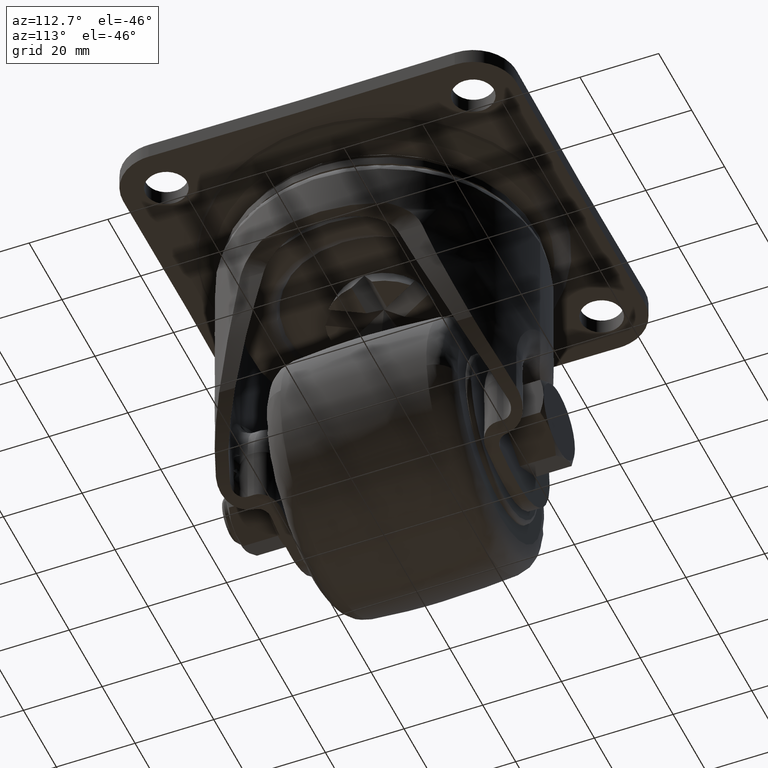
[diagram: clean part render]
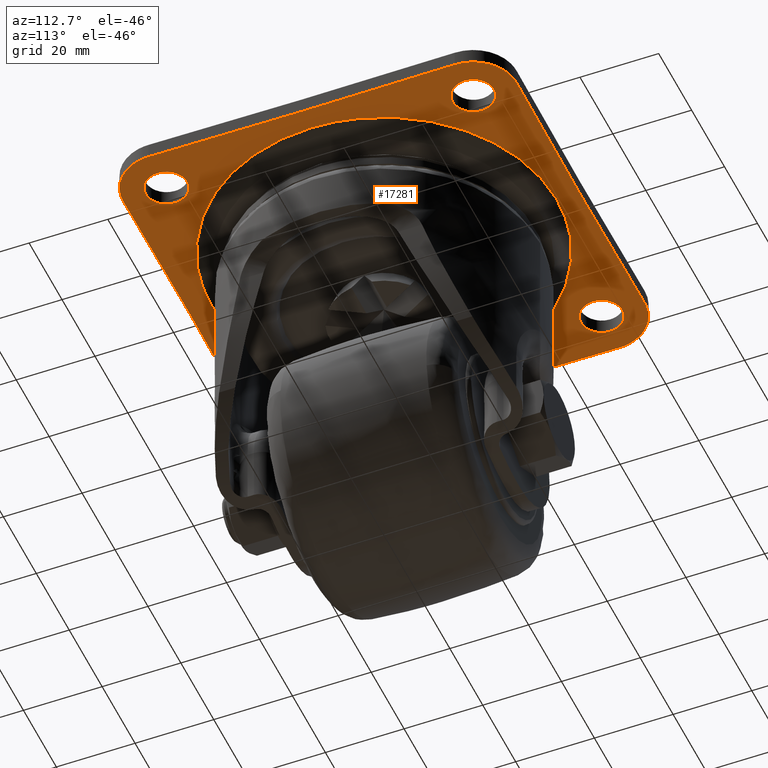
[diagram: same view with one face highlighted and labeled with its STEP entity id]
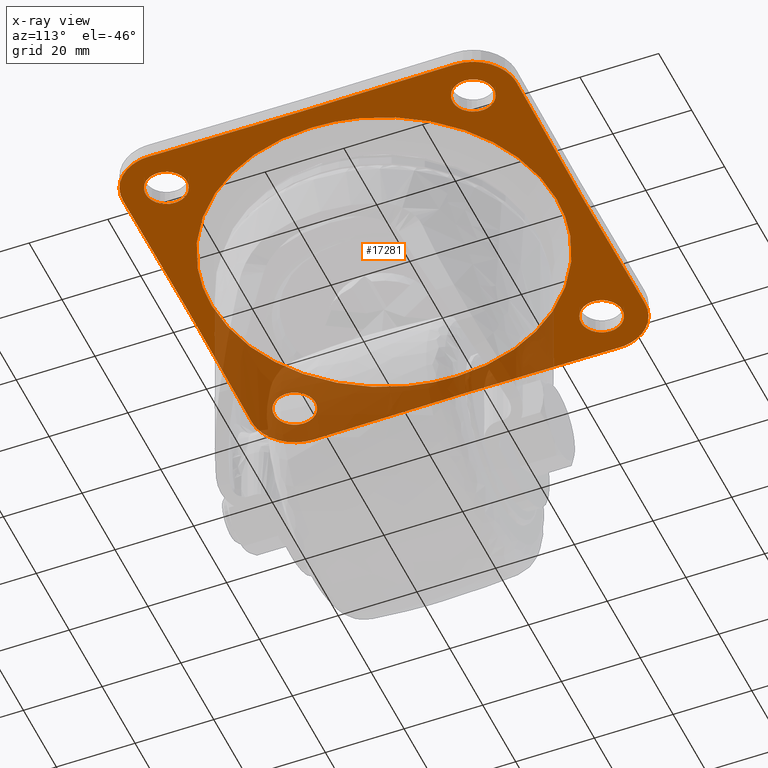
[diagram: x-ray of the same camera — body ghosted, the highlighted face saturated]
A machine part, auxiliary view. The second image highlights one B-rep face of the part: STEP entity #17281.
The next image is the same camera in x-ray: the body ghosted, the highlighted face saturated — about 30% of this face is hidden behind the body in this view.
In plain terms, the highlighted face is a freeform B-spline surface patch.
Its self-contained STEP definition (entity closure, byte-faithful):
#15421=CARTESIAN_POINT('',(-39.320512832876382,-44.240207691695332,-4.000005999999945));
#15422=VERTEX_POINT('',#15421);
#15423=CARTESIAN_POINT('',(-33.750008000000008,-39.0,-4.000005999999945));
#15424=VERTEX_POINT('',#15423);
#15425=CARTESIAN_POINT('',(-39.320512832876382,-44.240207691695332,-4.000005999999945));
#15426=CARTESIAN_POINT('',(-39.160410007477225,-44.250000000000000,-4.000005999999945));
#15427=CARTESIAN_POINT('',(-39.000008000000001,-44.250000000000000,-4.000005999999945));
#15428=CARTESIAN_POINT('',(-33.750008000000001,-44.250000000000007,-4.000005999999945));
#15429=CARTESIAN_POINT('',(-33.750008000000008,-39.0,-4.000005999999945));
#15437=(BOUNDED_CURVE()B_SPLINE_CURVE(2,(#15425,#15426,#15427,#15428,#15429),.UNSPECIFIED.,.F.,.U.)B_SPLINE_CURVE_WITH_KNOTS((3,2,3),(0.239332962231485,0.250000000000000,0.500000000000000),.UNSPECIFIED.)CURVE()GEOMETRIC_REPRESENTATION_ITEM()RATIONAL_B_SPLINE_CURVE((0.976072041650734,0.987502787891100,1.0,0.707106781186547,1.0))REPRESENTATION_ITEM(''));
#15438=EDGE_CURVE('',#15422,#15424,#15437,.T.);
#15479=CARTESIAN_POINT('',(-38.679503167123627,-33.759792308304668,-4.000005999999945));
#15480=VERTEX_POINT('',#15479);
#15486=CARTESIAN_POINT('',(-33.750008000000008,-39.0,-4.000005999999945));
#15487=CARTESIAN_POINT('',(-33.750008000000015,-34.061293149045717,-4.000005999999944));
#15488=CARTESIAN_POINT('',(-38.679503167123634,-33.759792308304675,-4.000005999999945));
#15496=(BOUNDED_CURVE()B_SPLINE_CURVE(2,(#15486,#15487,#15488),.UNSPECIFIED.,.F.,.U.)B_SPLINE_CURVE_WITH_KNOTS((3,3),(0.500000000000000,0.739332962231485),.UNSPECIFIED.)CURVE()GEOMETRIC_REPRESENTATION_ITEM()RATIONAL_B_SPLINE_CURVE((1.0,0.719603993295448,0.976072041650734))REPRESENTATION_ITEM(''));
#15497=EDGE_CURVE('',#15424,#15480,#15496,.T.);
#15520=CARTESIAN_POINT('',(-44.250008000000001,-39.0,-4.000005999999945));
#15521=VERTEX_POINT('',#15520);
#15522=CARTESIAN_POINT('',(-44.250008000000001,-39.0,-4.000005999999945));
#15523=CARTESIAN_POINT('',(-44.250008000000008,-43.938706850954283,-4.000005999999945));
#15524=CARTESIAN_POINT('',(-39.320512832876382,-44.240207691695332,-4.000005999999945));
#15532=(BOUNDED_CURVE()B_SPLINE_CURVE(2,(#15522,#15523,#15524),.UNSPECIFIED.,.F.,.U.)B_SPLINE_CURVE_WITH_KNOTS((3,3),(0.0,0.239332962231485),.UNSPECIFIED.)CURVE()GEOMETRIC_REPRESENTATION_ITEM()RATIONAL_B_SPLINE_CURVE((1.0,0.719603993295447,0.976072041650734))REPRESENTATION_ITEM(''));
#15533=EDGE_CURVE('',#15521,#15422,#15532,.T.);
#15535=CARTESIAN_POINT('',(-38.679503167123620,-33.759792308304682,-4.000005999999944));
#15536=CARTESIAN_POINT('',(-38.839605992522770,-33.750000000000000,-4.000005999999945));
#15537=CARTESIAN_POINT('',(-39.000008000000001,-33.750000000000000,-4.000005999999945));
#15538=CARTESIAN_POINT('',(-44.250007999999994,-33.750000000000007,-4.000005999999945));
#15539=CARTESIAN_POINT('',(-44.250008000000001,-39.0,-4.000005999999945));
#15547=(BOUNDED_CURVE()B_SPLINE_CURVE(2,(#15535,#15536,#15537,#15538,#15539),.UNSPECIFIED.,.F.,.U.)B_SPLINE_CURVE_WITH_KNOTS((3,2,3),(0.739332962231485,0.750000000000000,1.0),.UNSPECIFIED.)CURVE()GEOMETRIC_REPRESENTATION_ITEM()RATIONAL_B_SPLINE_CURVE((0.976072041650734,0.987502787891100,1.0,0.707106781186547,1.0))REPRESENTATION_ITEM(''));
#15548=EDGE_CURVE('',#15480,#15521,#15547,.T.);
#15603=CARTESIAN_POINT('',(-39.320512832876382,33.759792308304668,-4.000005999999945));
#15604=VERTEX_POINT('',#15603);
#15605=CARTESIAN_POINT('',(-33.750008000000008,39.0,-4.000005999999945));
#15606=VERTEX_POINT('',#15605);
#15607=CARTESIAN_POINT('',(-39.320512832876368,33.759792308304675,-4.000005999999944));
#15608=CARTESIAN_POINT('',(-39.160410007477225,33.750000000000000,-4.000005999999944));
#15609=CARTESIAN_POINT('',(-39.000008000000001,33.750000000000000,-4.000005999999945));
#15610=CARTESIAN_POINT('',(-33.750008000000001,33.750000000000007,-4.000005999999945));
#15611=CARTESIAN_POINT('',(-33.750008000000008,39.0,-4.000005999999945));
#15619=(BOUNDED_CURVE()B_SPLINE_CURVE(2,(#15607,#15608,#15609,#15610,#15611),.UNSPECIFIED.,.F.,.U.)B_SPLINE_CURVE_WITH_KNOTS((3,2,3),(0.239332962231485,0.250000000000000,0.500000000000000),.UNSPECIFIED.)CURVE()GEOMETRIC_REPRESENTATION_ITEM()RATIONAL_B_SPLINE_CURVE((0.976072041650734,0.987502787891100,1.0,0.707106781186547,1.0))REPRESENTATION_ITEM(''));
#15620=EDGE_CURVE('',#15604,#15606,#15619,.T.);
#15661=CARTESIAN_POINT('',(-38.679503167123627,44.240207691695332,-4.000005999999945));
#15662=VERTEX_POINT('',#15661);
#15668=CARTESIAN_POINT('',(-33.750008000000008,39.0,-4.000005999999945));
#15669=CARTESIAN_POINT('',(-33.750008000000015,43.938706850954276,-4.000005999999944));
#15670=CARTESIAN_POINT('',(-38.679503167123634,44.240207691695332,-4.000005999999945));
#15678=(BOUNDED_CURVE()B_SPLINE_CURVE(2,(#15668,#15669,#15670),.UNSPECIFIED.,.F.,.U.)B_SPLINE_CURVE_WITH_KNOTS((3,3),(0.500000000000000,0.739332962231485),.UNSPECIFIED.)CURVE()GEOMETRIC_REPRESENTATION_ITEM()RATIONAL_B_SPLINE_CURVE((1.0,0.719603993295448,0.976072041650734))REPRESENTATION_ITEM(''));
#15679=EDGE_CURVE('',#15606,#15662,#15678,.T.);
#15702=CARTESIAN_POINT('',(-44.250008000000001,39.0,-4.000005999999945));
#15703=VERTEX_POINT('',#15702);
#15704=CARTESIAN_POINT('',(-44.250008000000001,39.0,-4.000005999999945));
#15705=CARTESIAN_POINT('',(-44.250008000000008,34.061293149045710,-4.000005999999945));
#15706=CARTESIAN_POINT('',(-39.320512832876382,33.759792308304682,-4.000005999999945));
#15714=(BOUNDED_CURVE()B_SPLINE_CURVE(2,(#15704,#15705,#15706),.UNSPECIFIED.,.F.,.U.)B_SPLINE_CURVE_WITH_KNOTS((3,3),(0.0,0.239332962231485),.UNSPECIFIED.)CURVE()GEOMETRIC_REPRESENTATION_ITEM()RATIONAL_B_SPLINE_CURVE((1.0,0.719603993295447,0.976072041650734))REPRESENTATION_ITEM(''));
#15715=EDGE_CURVE('',#15703,#15604,#15714,.T.);
#15717=CARTESIAN_POINT('',(-38.679503167123620,44.240207691695332,-4.000005999999944));
#15718=CARTESIAN_POINT('',(-38.839605992522770,44.250000000000000,-4.000005999999945));
#15719=CARTESIAN_POINT('',(-39.000008000000001,44.250000000000000,-4.000005999999945));
#15720=CARTESIAN_POINT('',(-44.250007999999994,44.250000000000007,-4.000005999999945));
#15721=CARTESIAN_POINT('',(-44.250008000000001,39.0,-4.000005999999945));
#15729=(BOUNDED_CURVE()B_SPLINE_CURVE(2,(#15717,#15718,#15719,#15720,#15721),.UNSPECIFIED.,.F.,.U.)B_SPLINE_CURVE_WITH_KNOTS((3,2,3),(0.739332962231485,0.750000000000000,1.0),.UNSPECIFIED.)CURVE()GEOMETRIC_REPRESENTATION_ITEM()RATIONAL_B_SPLINE_CURVE((0.976072041650734,0.987502787891100,1.0,0.707106781186547,1.0))REPRESENTATION_ITEM(''));
#15730=EDGE_CURVE('',#15662,#15703,#15729,.T.);
#15785=CARTESIAN_POINT('',(38.679503167123627,33.759792308304668,-4.000005999999945));
#15786=VERTEX_POINT('',#15785);
#15787=CARTESIAN_POINT('',(44.250008000000001,39.0,-4.000005999999945));
#15788=VERTEX_POINT('',#15787);
#15789=CARTESIAN_POINT('',(38.679503167123627,33.759792308304682,-4.000005999999944));
#15790=CARTESIAN_POINT('',(38.839605992522770,33.750000000000000,-4.000005999999944));
#15791=CARTESIAN_POINT('',(39.000008000000001,33.750000000000000,-4.000005999999945));
#15792=CARTESIAN_POINT('',(44.250007999999994,33.750000000000007,-4.000005999999945));
#15793=CARTESIAN_POINT('',(44.250008000000001,39.0,-4.000005999999945));
#15801=(BOUNDED_CURVE()B_SPLINE_CURVE(2,(#15789,#15790,#15791,#15792,#15793),.UNSPECIFIED.,.F.,.U.)B_SPLINE_CURVE_WITH_KNOTS((3,2,3),(0.239332962231485,0.250000000000000,0.500000000000000),.UNSPECIFIED.)CURVE()GEOMETRIC_REPRESENTATION_ITEM()RATIONAL_B_SPLINE_CURVE((0.976072041650734,0.987502787891100,1.0,0.707106781186547,1.0))REPRESENTATION_ITEM(''));
#15802=EDGE_CURVE('',#15786,#15788,#15801,.T.);
#15843=CARTESIAN_POINT('',(39.320512832876382,44.240207691695332,-4.000005999999945));
#15844=VERTEX_POINT('',#15843);
#15850=CARTESIAN_POINT('',(44.250008000000001,39.0,-4.000005999999945));
#15851=CARTESIAN_POINT('',(44.250008000000001,43.938706850954269,-4.000005999999945));
#15852=CARTESIAN_POINT('',(39.320512832876375,44.240207691695332,-4.000005999999944));
#15860=(BOUNDED_CURVE()B_SPLINE_CURVE(2,(#15850,#15851,#15852),.UNSPECIFIED.,.F.,.U.)B_SPLINE_CURVE_WITH_KNOTS((3,3),(0.500000000000000,0.739332962231485),.UNSPECIFIED.)CURVE()GEOMETRIC_REPRESENTATION_ITEM()RATIONAL_B_SPLINE_CURVE((1.0,0.719603993295448,0.976072041650734))REPRESENTATION_ITEM(''));
#15861=EDGE_CURVE('',#15788,#15844,#15860,.T.);
#15884=CARTESIAN_POINT('',(33.750008000000008,39.0,-4.000005999999945));
#15885=VERTEX_POINT('',#15884);
#15886=CARTESIAN_POINT('',(33.750008000000008,39.0,-4.000005999999945));
#15887=CARTESIAN_POINT('',(33.750008000000001,34.061293149045724,-4.000005999999944));
#15888=CARTESIAN_POINT('',(38.679503167123634,33.759792308304675,-4.000005999999945));
#15896=(BOUNDED_CURVE()B_SPLINE_CURVE(2,(#15886,#15887,#15888),.UNSPECIFIED.,.F.,.U.)B_SPLINE_CURVE_WITH_KNOTS((3,3),(0.0,0.239332962231485),.UNSPECIFIED.)CURVE()GEOMETRIC_REPRESENTATION_ITEM()RATIONAL_B_SPLINE_CURVE((1.0,0.719603993295448,0.976072041650734))REPRESENTATION_ITEM(''));
#15897=EDGE_CURVE('',#15885,#15786,#15896,.T.);
#15899=CARTESIAN_POINT('',(39.320512832876368,44.240207691695318,-4.000005999999944));
#15900=CARTESIAN_POINT('',(39.160410007477218,44.249999999999993,-4.000005999999944));
#15901=CARTESIAN_POINT('',(39.000008000000001,44.250000000000000,-4.000005999999945));
#15902=CARTESIAN_POINT('',(33.750008000000001,44.250000000000007,-4.000005999999945));
#15903=CARTESIAN_POINT('',(33.750008000000008,39.0,-4.000005999999945));
#15911=(BOUNDED_CURVE()B_SPLINE_CURVE(2,(#15899,#15900,#15901,#15902,#15903),.UNSPECIFIED.,.F.,.U.)B_SPLINE_CURVE_WITH_KNOTS((3,2,3),(0.739332962231485,0.750000000000000,1.0),.UNSPECIFIED.)CURVE()GEOMETRIC_REPRESENTATION_ITEM()RATIONAL_B_SPLINE_CURVE((0.976072041650735,0.987502787891100,1.0,0.707106781186547,1.0))REPRESENTATION_ITEM(''));
#15912=EDGE_CURVE('',#15844,#15885,#15911,.T.);
#15967=CARTESIAN_POINT('',(38.679503167123627,-44.240207691695332,-4.000005999999945));
#15968=VERTEX_POINT('',#15967);
#15969=CARTESIAN_POINT('',(44.250008000000001,-39.0,-4.000005999999945));
#15970=VERTEX_POINT('',#15969);
#15971=CARTESIAN_POINT('',(38.679503167123634,-44.240207691695332,-4.000005999999945));
#15972=CARTESIAN_POINT('',(38.839605992522777,-44.250000000000000,-4.000005999999945));
#15973=CARTESIAN_POINT('',(39.000008000000001,-44.250000000000000,-4.000005999999945));
#15974=CARTESIAN_POINT('',(44.250007999999994,-44.250000000000007,-4.000005999999945));
#15975=CARTESIAN_POINT('',(44.250008000000001,-39.0,-4.000005999999945));
#15983=(BOUNDED_CURVE()B_SPLINE_CURVE(2,(#15971,#15972,#15973,#15974,#15975),.UNSPECIFIED.,.F.,.U.)B_SPLINE_CURVE_WITH_KNOTS((3,2,3),(0.239332962231485,0.250000000000000,0.500000000000000),.UNSPECIFIED.)CURVE()GEOMETRIC_REPRESENTATION_ITEM()RATIONAL_B_SPLINE_CURVE((0.976072041650734,0.987502787891100,1.0,0.707106781186547,1.0))REPRESENTATION_ITEM(''));
#15984=EDGE_CURVE('',#15968,#15970,#15983,.T.);
#16025=CARTESIAN_POINT('',(39.320512832876382,-33.759792308304668,-4.000005999999945));
#16026=VERTEX_POINT('',#16025);
#16032=CARTESIAN_POINT('',(44.250008000000001,-39.0,-4.000005999999945));
#16033=CARTESIAN_POINT('',(44.250008000000001,-34.061293149045717,-4.000005999999945));
#16034=CARTESIAN_POINT('',(39.320512832876375,-33.759792308304675,-4.000005999999944));
#16042=(BOUNDED_CURVE()B_SPLINE_CURVE(2,(#16032,#16033,#16034),.UNSPECIFIED.,.F.,.U.)B_SPLINE_CURVE_WITH_KNOTS((3,3),(0.500000000000000,0.739332962231485),.UNSPECIFIED.)CURVE()GEOMETRIC_REPRESENTATION_ITEM()RATIONAL_B_SPLINE_CURVE((1.0,0.719603993295448,0.976072041650734))REPRESENTATION_ITEM(''));
#16043=EDGE_CURVE('',#15970,#16026,#16042,.T.);
#16066=CARTESIAN_POINT('',(33.750008000000008,-39.0,-4.000005999999945));
#16067=VERTEX_POINT('',#16066);
#16068=CARTESIAN_POINT('',(33.750008000000008,-39.0,-4.000005999999945));
#16069=CARTESIAN_POINT('',(33.750008000000001,-43.938706850954283,-4.000005999999944));
#16070=CARTESIAN_POINT('',(38.679503167123634,-44.240207691695332,-4.000005999999945));
#16078=(BOUNDED_CURVE()B_SPLINE_CURVE(2,(#16068,#16069,#16070),.UNSPECIFIED.,.F.,.U.)B_SPLINE_CURVE_WITH_KNOTS((3,3),(0.0,0.239332962231485),.UNSPECIFIED.)CURVE()GEOMETRIC_REPRESENTATION_ITEM()RATIONAL_B_SPLINE_CURVE((1.0,0.719603993295448,0.976072041650734))REPRESENTATION_ITEM(''));
#16079=EDGE_CURVE('',#16067,#15968,#16078,.T.);
#16081=CARTESIAN_POINT('',(39.320512832876368,-33.759792308304675,-4.000005999999944));
#16082=CARTESIAN_POINT('',(39.160410007477218,-33.749999999999993,-4.000005999999944));
#16083=CARTESIAN_POINT('',(39.000008000000001,-33.750000000000000,-4.000005999999945));
#16084=CARTESIAN_POINT('',(33.750008000000001,-33.750000000000007,-4.000005999999945));
#16085=CARTESIAN_POINT('',(33.750008000000008,-39.0,-4.000005999999945));
#16093=(BOUNDED_CURVE()B_SPLINE_CURVE(2,(#16081,#16082,#16083,#16084,#16085),.UNSPECIFIED.,.F.,.U.)B_SPLINE_CURVE_WITH_KNOTS((3,2,3),(0.739332962231485,0.750000000000000,1.0),.UNSPECIFIED.)CURVE()GEOMETRIC_REPRESENTATION_ITEM()RATIONAL_B_SPLINE_CURVE((0.976072041650735,0.987502787891100,1.0,0.707106781186547,1.0))REPRESENTATION_ITEM(''));
#16094=EDGE_CURVE('',#16026,#16067,#16093,.T.);
#16873=CARTESIAN_POINT('',(49.999086581534897,-38.859138427465403,-4.000005999999945));
#16874=VERTEX_POINT('',#16873);
#16880=CARTESIAN_POINT('',(49.999088974296697,38.859327055020650,-4.000005999999945));
#16881=VERTEX_POINT('',#16880);
#16882=CARTESIAN_POINT('',(49.999088974296697,38.859327055020650,-4.000005999999945));
#16883=CARTESIAN_POINT('',(49.500875653249565,0.000094329118508,-4.000005999999946));
#16884=CARTESIAN_POINT('',(49.999086581514973,-38.859138427463719,-4.000005999999945));
#16892=(BOUNDED_CURVE()B_SPLINE_CURVE(2,(#16882,#16883,#16884),.UNSPECIFIED.,.F.,.U.)CURVE()GEOMETRIC_REPRESENTATION_ITEM()QUASI_UNIFORM_CURVE()RATIONAL_B_SPLINE_CURVE((1.0,0.999917821802801,1.0))REPRESENTATION_ITEM(''));
#16893=EDGE_CURVE('',#16881,#16874,#16892,.T.);
#16918=CARTESIAN_POINT('',(38.859112224408648,-49.999107261167403,-4.000005999999945));
#16919=VERTEX_POINT('',#16918);
#16925=CARTESIAN_POINT('',(38.859112224408648,-49.999107261167403,-4.000005999999945));
#16926=CARTESIAN_POINT('',(39.590738382218461,-50.008575948493139,-4.000005999999947));
#16927=CARTESIAN_POINT('',(40.872692545834042,-49.896660290224617,-4.000005999999942));
#16928=CARTESIAN_POINT('',(42.910510485957239,-49.351257144265709,-4.000005999999955));
#16929=CARTESIAN_POINT('',(44.652025024700997,-48.512897578222557,-4.000005999999927));
#16930=CARTESIAN_POINT('',(46.275569401386988,-47.314705198689623,-4.000005999999991));
#16931=CARTESIAN_POINT('',(47.397400085875177,-46.164547972837262,-4.000005999999869));
#16932=CARTESIAN_POINT('',(48.449094668650503,-44.720640071935847,-4.000005999999935));
#16933=CARTESIAN_POINT('',(49.182740644349778,-43.289145368793733,-4.000006000000000));
#16934=CARTESIAN_POINT('',(49.842686703560219,-41.239177745577422,-4.000005999999896));
#16935=CARTESIAN_POINT('',(50.011696119351740,-39.819436574215878,-4.000005999999982));
#16936=CARTESIAN_POINT('',(49.999086581534897,-38.859138427465403,-4.000005999999945));
#16937=B_SPLINE_CURVE_WITH_KNOTS('',3,(#16925,#16926,#16927,#16928,#16929,#16930,#16931,#16932,#16933,#16934,#16935,#16936),.UNSPECIFIED.,.F.,.U.,(4,1,1,1,1,1,1,1,1,4),(0.000000041236369,2.195061499117408,3.841396808126236,6.310878562661907,7.957221728796965,9.877852845926746,11.112611838742470,13.307715126677600,14.679660456290399,17.560693995647881),.UNSPECIFIED.);
#16938=EDGE_CURVE('',#16919,#16874,#16937,.T.);
#16959=CARTESIAN_POINT('',(-38.859143584878602,-49.999107511081000,-4.000005999999945));
#16960=VERTEX_POINT('',#16959);
#16966=CARTESIAN_POINT('',(38.859112224408648,-49.999107261167403,-4.000005999999945));
#16967=CARTESIAN_POINT('',(-0.000015681835654,-49.500878411463674,-4.000005999999946));
#16968=CARTESIAN_POINT('',(-38.859143584898099,-49.999107509454802,-4.000005999999945));
#16976=(BOUNDED_CURVE()B_SPLINE_CURVE(2,(#16966,#16967,#16968),.UNSPECIFIED.,.F.,.U.)CURVE()GEOMETRIC_REPRESENTATION_ITEM()QUASI_UNIFORM_CURVE()RATIONAL_B_SPLINE_CURVE((1.0,0.999917815801585,1.0))REPRESENTATION_ITEM(''));
#16977=EDGE_CURVE('',#16919,#16960,#16976,.T.);
#16998=CARTESIAN_POINT('',(-49.999113580391203,-38.859138340362598,-4.000005999999945));
#16999=VERTEX_POINT('',#16998);
#17005=CARTESIAN_POINT('',(-49.999113580391203,-38.859138340362598,-4.000005999999945));
#17006=CARTESIAN_POINT('',(-50.012413211734767,-39.865177761765722,-4.000005999999945));
#17007=CARTESIAN_POINT('',(-49.828549788335032,-41.330821378416807,-4.000005999999940));
#17008=CARTESIAN_POINT('',(-49.186734360137017,-43.242010174183761,-4.000005999999954));
#17009=CARTESIAN_POINT('',(-48.370711639888299,-44.884900704966697,-4.000005999999918));
#17010=CARTESIAN_POINT('',(-47.120361187444423,-46.535667502377258,-4.000005999999992));
#17011=CARTESIAN_POINT('',(-45.423572526004939,-48.014273517848672,-4.000005999999918));
#17012=CARTESIAN_POINT('',(-43.473188314625268,-49.140118325653823,-4.000005999999960));
#17013=CARTESIAN_POINT('',(-41.239099849840883,-49.859273928381192,-4.000005999999940));
#17014=CARTESIAN_POINT('',(-39.636500571237818,-50.009188355071842,-4.000005999999948));
#17015=CARTESIAN_POINT('',(-38.859143584878602,-49.999107511081000,-4.000005999999945));
#17016=B_SPLINE_CURVE_WITH_KNOTS('',3,(#17005,#17006,#17007,#17008,#17009,#17010,#17011,#17012,#17013,#17014,#17015),.UNSPECIFIED.,.F.,.U.,(4,1,1,1,1,1,1,1,4),(0.000000041241520,3.018243525445113,4.390174081809194,6.036500062118861,8.505974303341635,10.563839516043750,12.758936492793080,15.228427359681000,17.560691883731032),.UNSPECIFIED.);
#17017=EDGE_CURVE('',#16999,#16960,#17016,.T.);
#17038=CARTESIAN_POINT('',(-49.999113600735193,38.859141825077252,-4.000005999999945));
#17039=VERTEX_POINT('',#17038);
#17045=CARTESIAN_POINT('',(-49.999113580391203,-38.859138340362598,-4.000005999999945));
#17046=CARTESIAN_POINT('',(-49.500887203865588,0.000001742465876,-4.000005999999945));
#17047=CARTESIAN_POINT('',(-49.999113599427332,38.859141825093459,-4.000005999999945));
#17055=(BOUNDED_CURVE()B_SPLINE_CURVE(2,(#17045,#17046,#17047),.UNSPECIFIED.,.F.,.U.)CURVE()GEOMETRIC_REPRESENTATION_ITEM()QUASI_UNIFORM_CURVE()RATIONAL_B_SPLINE_CURVE((1.0,0.999917816706712,1.0))REPRESENTATION_ITEM(''));
#17056=EDGE_CURVE('',#16999,#17039,#17055,.T.);
#17077=CARTESIAN_POINT('',(-38.859172592322402,49.999087381304903,-4.000005999999945));
#17078=VERTEX_POINT('',#17077);
#17084=CARTESIAN_POINT('',(-38.859172592322402,49.999087381304903,-4.000005999999945));
#17085=CARTESIAN_POINT('',(-39.865215246077952,50.012394350081053,-4.000005999999941));
#17086=CARTESIAN_POINT('',(-41.330829807296517,49.828485654199881,-4.000005999999963));
#17087=CARTESIAN_POINT('',(-43.415831220775893,49.128461967387103,-4.000005999999901));
#17088=CARTESIAN_POINT('',(-45.041250099649147,48.269692176618634,-4.000006000000011));
#17089=CARTESIAN_POINT('',(-46.548660317021707,47.067628872331120,-4.000005999999901));
#17090=CARTESIAN_POINT('',(-47.810214679658671,45.673475423619102,-4.000005999999982));
#17091=CARTESIAN_POINT('',(-48.821938831064870,44.085159640201837,-4.000005999999918));
#17092=CARTESIAN_POINT('',(-49.461787123870771,42.511784502138852,-4.000005999999922));
#17093=CARTESIAN_POINT('',(-49.901995124585802,40.781168723422383,-4.000005999999981));
#17094=CARTESIAN_POINT('',(-50.009227833379683,39.636507151425860,-4.000005999999939));
#17095=CARTESIAN_POINT('',(-49.999113600735193,38.859141825077252,-4.000005999999945));
#17096=B_SPLINE_CURVE_WITH_KNOTS('',3,(#17084,#17085,#17086,#17087,#17088,#17089,#17090,#17091,#17092,#17093,#17094,#17095),.UNSPECIFIED.,.F.,.U.,(4,1,1,1,1,1,1,1,1,4),(0.000000041193037,3.018236197495593,4.390163422996753,6.585253097896390,8.505953651905578,10.152218443306090,12.210133916401951,14.130839992902770,15.228390387014770,17.560649248636580),.UNSPECIFIED.);
#17097=EDGE_CURVE('',#17078,#17039,#17096,.T.);
#17118=CARTESIAN_POINT('',(38.859326373033753,49.999089506773103,-4.000005999999945));
#17119=VERTEX_POINT('',#17118);
#17125=CARTESIAN_POINT('',(-38.859172592322402,49.999087381304903,-4.000005999999945));
#17126=CARTESIAN_POINT('',(0.000076903978388,49.500875449576050,-4.000005999999946));
#17127=CARTESIAN_POINT('',(38.859326373034172,49.999089506772791,-4.000005999999945));
#17135=(BOUNDED_CURVE()B_SPLINE_CURVE(2,(#17125,#17126,#17127),.UNSPECIFIED.,.F.,.U.)CURVE()GEOMETRIC_REPRESENTATION_ITEM()QUASI_UNIFORM_CURVE()RATIONAL_B_SPLINE_CURVE((1.0,0.999917821586693,1.0))REPRESENTATION_ITEM(''));
#17136=EDGE_CURVE('',#17078,#17119,#17135,.T.);
#17158=CARTESIAN_POINT('',(49.999088974296697,38.859327055020650,-4.000005999999945));
#17159=CARTESIAN_POINT('',(50.012386551862292,39.865347634288113,-4.000005999999932));
#17160=CARTESIAN_POINT('',(49.828527187511412,41.330964121087050,-4.000005999999958));
#17161=CARTESIAN_POINT('',(49.186724770621268,43.242117214715570,-4.000005999999934));
#17162=CARTESIAN_POINT('',(48.370713047412409,44.884971698591087,-4.000005999999953));
#17163=CARTESIAN_POINT('',(47.120390175544017,46.535711594857453,-4.000005999999926));
#17164=CARTESIAN_POINT('',(45.354396821390402,48.074704588720557,-4.000005999999962));
#17165=CARTESIAN_POINT('',(43.548114910483513,49.087400772007257,-4.000005999999938));
#17166=CARTESIAN_POINT('',(41.330936572003402,49.831810379184773,-4.000005999999952));
#17167=CARTESIAN_POINT('',(39.819600798433470,50.011705220778573,-4.000005999999965));
#17168=CARTESIAN_POINT('',(38.859326373033753,49.999089506773103,-4.000005999999945));
#17169=B_SPLINE_CURVE_WITH_KNOTS('',3,(#17158,#17159,#17160,#17161,#17162,#17163,#17164,#17165,#17166,#17167,#17168),.UNSPECIFIED.,.F.,.U.,(4,1,1,1,1,1,1,1,4),(0.000000040892363,3.018187092819023,4.390091998124733,6.036387196978076,8.505815266299655,10.563642003012211,13.033080650570620,14.679384224083311,17.560363550113639),.UNSPECIFIED.);
#17170=EDGE_CURVE('',#16881,#17119,#17169,.T.);
#17176=CARTESIAN_POINT('',(-54.994023625542113,54.993999253999000,-4.000005999999929));
#17177=CARTESIAN_POINT('',(54.994001681264429,54.993999253999000,-4.000005999999929));
#17178=CARTESIAN_POINT('',(-54.994023625542113,-54.994019940467560,-4.000005999999929));
#17179=CARTESIAN_POINT('',(54.994001681264429,-54.994019940467560,-4.000005999999929));
#17180=B_SPLINE_SURFACE_WITH_KNOTS('',1,1,((#17176,#17178),(#17177,#17179)),.UNSPECIFIED.,.F.,.F.,.U.,(2,2),(2,2),(0.0,109.988025306806610),(0.0,109.988019194466600),.UNSPECIFIED.);
#17181=ORIENTED_EDGE('',*,*,#17170,.F.);
#17182=ORIENTED_EDGE('',*,*,#16893,.T.);
#17183=ORIENTED_EDGE('',*,*,#16938,.F.);
#17184=ORIENTED_EDGE('',*,*,#16977,.T.);
#17185=ORIENTED_EDGE('',*,*,#17017,.F.);
#17186=ORIENTED_EDGE('',*,*,#17056,.T.);
#17187=ORIENTED_EDGE('',*,*,#17097,.F.);
#17188=ORIENTED_EDGE('',*,*,#17136,.T.);
#17189=EDGE_LOOP('',(#17181,#17182,#17183,#17184,#17185,#17186,#17187,#17188));
#17190=FACE_OUTER_BOUND('',#17189,.T.);
#17191=ORIENTED_EDGE('',*,*,#16043,.T.);
#17192=ORIENTED_EDGE('',*,*,#16094,.T.);
#17193=ORIENTED_EDGE('',*,*,#16079,.T.);
#17194=ORIENTED_EDGE('',*,*,#15984,.T.);
#17195=EDGE_LOOP('',(#17191,#17192,#17193,#17194));
#17196=FACE_BOUND('',#17195,.T.);
#17197=ORIENTED_EDGE('',*,*,#15861,.T.);
#17198=ORIENTED_EDGE('',*,*,#15912,.T.);
#17199=ORIENTED_EDGE('',*,*,#15897,.T.);
#17200=ORIENTED_EDGE('',*,*,#15802,.T.);
#17201=EDGE_LOOP('',(#17197,#17198,#17199,#17200));
#17202=FACE_BOUND('',#17201,.T.);
#17203=ORIENTED_EDGE('',*,*,#15679,.T.);
#17204=ORIENTED_EDGE('',*,*,#15730,.T.);
#17205=ORIENTED_EDGE('',*,*,#15715,.T.);
#17206=ORIENTED_EDGE('',*,*,#15620,.T.);
#17207=EDGE_LOOP('',(#17203,#17204,#17205,#17206));
#17208=FACE_BOUND('',#17207,.T.);
#17209=ORIENTED_EDGE('',*,*,#15497,.T.);
#17210=ORIENTED_EDGE('',*,*,#15548,.T.);
#17211=ORIENTED_EDGE('',*,*,#15533,.T.);
#17212=ORIENTED_EDGE('',*,*,#15438,.T.);
#17213=EDGE_LOOP('',(#17209,#17210,#17211,#17212));
#17214=FACE_BOUND('',#17213,.T.);
#17215=CARTESIAN_POINT('',(-43.999565000000104,0.0,-4.000005999999929));
#17216=VERTEX_POINT('',#17215);
#17217=CARTESIAN_POINT('',(0.383963766014007,43.997889631402728,-4.000005999981134));
#17218=VERTEX_POINT('',#17217);
#17219=CARTESIAN_POINT('',(-43.999565000000104,0.0,-4.000005999999929));
#17220=CARTESIAN_POINT('',(-43.999565000000032,43.999565000008388,-4.000005999990614));
#17221=CARTESIAN_POINT('',(1.479025E-013,43.999565000016773,-4.000005999981216));
#17222=CARTESIAN_POINT('',(0.191985538117587,43.999565000016815,-4.000005999981175));
#17223=CARTESIAN_POINT('',(0.383963766014007,43.997889631402728,-4.000005999981134));
#17231=(BOUNDED_CURVE()B_SPLINE_CURVE(2,(#17219,#17220,#17221,#17222,#17223),.UNSPECIFIED.,.F.,.U.)B_SPLINE_CURVE_WITH_KNOTS((3,2,3),(0.0,0.250000000000000,0.251539894335501),.UNSPECIFIED.)CURVE()GEOMETRIC_REPRESENTATION_ITEM()RATIONAL_B_SPLINE_CURVE((1.0,0.707106781186548,1.0,0.998195901565770,0.996414028099217))REPRESENTATION_ITEM(''));
#17232=EDGE_CURVE('',#17216,#17218,#17231,.T.);
#17233=ORIENTED_EDGE('',*,*,#17232,.F.);
#17234=CARTESIAN_POINT('',(-0.383963766014000,-43.997889631402728,-4.000005999981134));
#17235=VERTEX_POINT('',#17234);
#17236=CARTESIAN_POINT('',(-0.383963766014000,-43.997889631402728,-4.000005999981134));
#17237=CARTESIAN_POINT('',(-43.999565000000167,-43.617262045683667,-4.000005999990533));
#17238=CARTESIAN_POINT('',(-43.999565000000104,0.0,-4.000005999999929));
#17246=(BOUNDED_CURVE()B_SPLINE_CURVE(2,(#17236,#17237,#17238),.UNSPECIFIED.,.F.,.U.)B_SPLINE_CURVE_WITH_KNOTS((3,3),(0.751539894335501,1.0),.UNSPECIFIED.)CURVE()GEOMETRIC_REPRESENTATION_ITEM()RATIONAL_B_SPLINE_CURVE((0.996414028099217,0.708910879620777,1.0))REPRESENTATION_ITEM(''));
#17247=EDGE_CURVE('',#17235,#17216,#17246,.T.);
#17248=ORIENTED_EDGE('',*,*,#17247,.F.);
#17249=CARTESIAN_POINT('',(43.999565000000104,0.0,-4.000005999999929));
#17250=VERTEX_POINT('',#17249);
#17251=CARTESIAN_POINT('',(43.999565000000104,0.0,-4.000005999999929));
#17252=CARTESIAN_POINT('',(43.999565000000032,-43.999565000008388,-4.000005999990614));
#17253=CARTESIAN_POINT('',(-1.407727E-013,-43.999565000016773,-4.000005999981216));
#17254=CARTESIAN_POINT('',(-0.191985538117580,-43.999565000016815,-4.000005999981175));
#17255=CARTESIAN_POINT('',(-0.383963766014000,-43.997889631402728,-4.000005999981134));
#17263=(BOUNDED_CURVE()B_SPLINE_CURVE(2,(#17251,#17252,#17253,#17254,#17255),.UNSPECIFIED.,.F.,.U.)B_SPLINE_CURVE_WITH_KNOTS((3,2,3),(0.500000000000000,0.750000000000000,0.751539894335501),.UNSPECIFIED.)CURVE()GEOMETRIC_REPRESENTATION_ITEM()RATIONAL_B_SPLINE_CURVE((1.0,0.707106781186548,1.0,0.998195901565770,0.996414028099217))REPRESENTATION_ITEM(''));
#17264=EDGE_CURVE('',#17250,#17235,#17263,.T.);
#17265=ORIENTED_EDGE('',*,*,#17264,.F.);
#17266=CARTESIAN_POINT('',(0.383963766014007,43.997889631402728,-4.000005999981134));
#17267=CARTESIAN_POINT('',(43.999565000000167,43.617262045683667,-4.000005999990533));
#17268=CARTESIAN_POINT('',(43.999565000000104,0.0,-4.000005999999929));
#17276=(BOUNDED_CURVE()B_SPLINE_CURVE(2,(#17266,#17267,#17268),.UNSPECIFIED.,.F.,.U.)B_SPLINE_CURVE_WITH_KNOTS((3,3),(0.251539894335501,0.500000000000000),.UNSPECIFIED.)CURVE()GEOMETRIC_REPRESENTATION_ITEM()RATIONAL_B_SPLINE_CURVE((0.996414028099217,0.708910879620777,1.0))REPRESENTATION_ITEM(''));
#17277=EDGE_CURVE('',#17218,#17250,#17276,.T.);
#17278=ORIENTED_EDGE('',*,*,#17277,.F.);
#17279=EDGE_LOOP('',(#17233,#17248,#17265,#17278));
#17280=FACE_BOUND('',#17279,.T.);
#17281=ADVANCED_FACE('',(#17190,#17196,#17202,#17208,#17214,#17280),#17180,.T.);